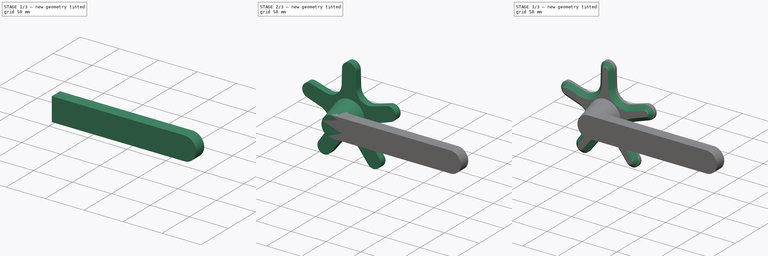
[diagram: build sequence overview — one tinted view per stage of 3, left to right]
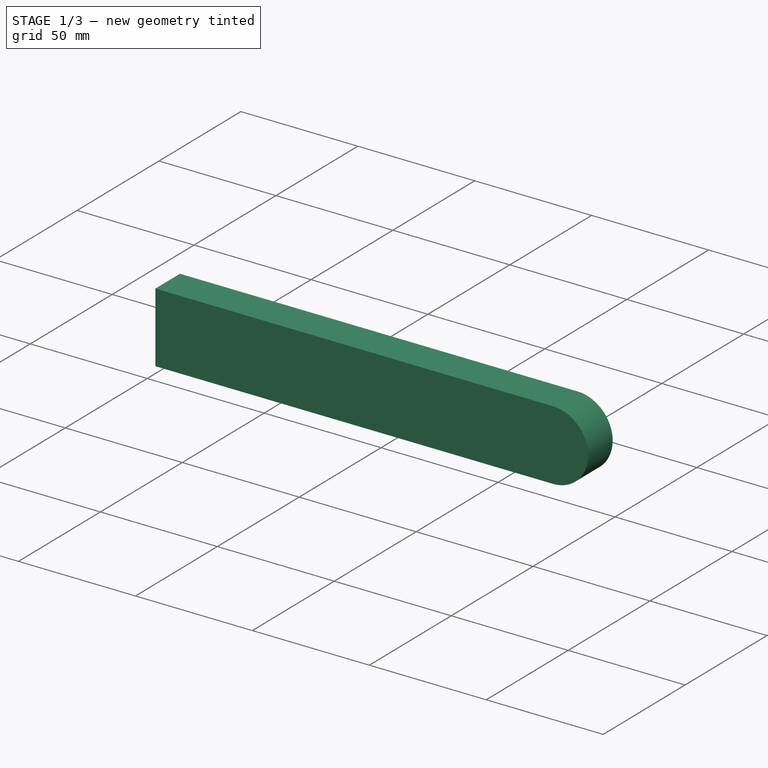
[diagram: stage 1 of 3 — iso view after this stage's code; geometry added in this stage tinted green]
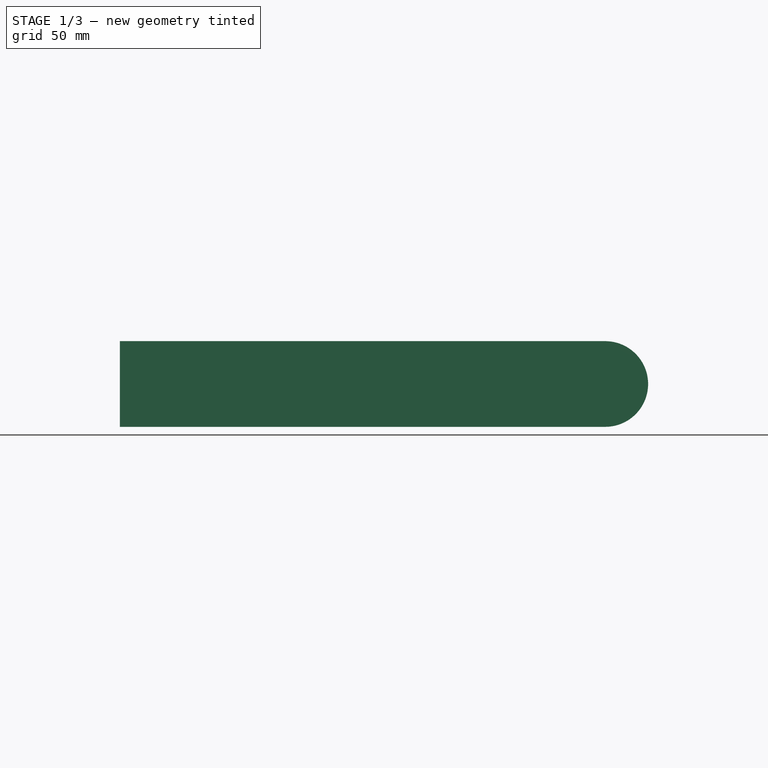
[diagram: stage 1 of 3 — front view after this stage's code; geometry added in this stage tinted green]
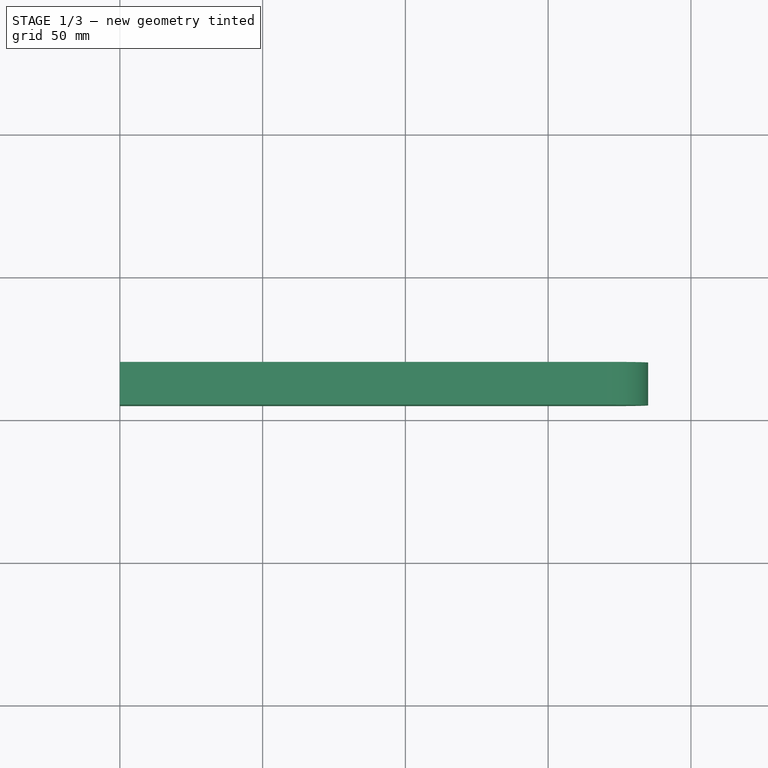
[diagram: stage 1 of 3 — top view after this stage's code; geometry added in this stage tinted green]
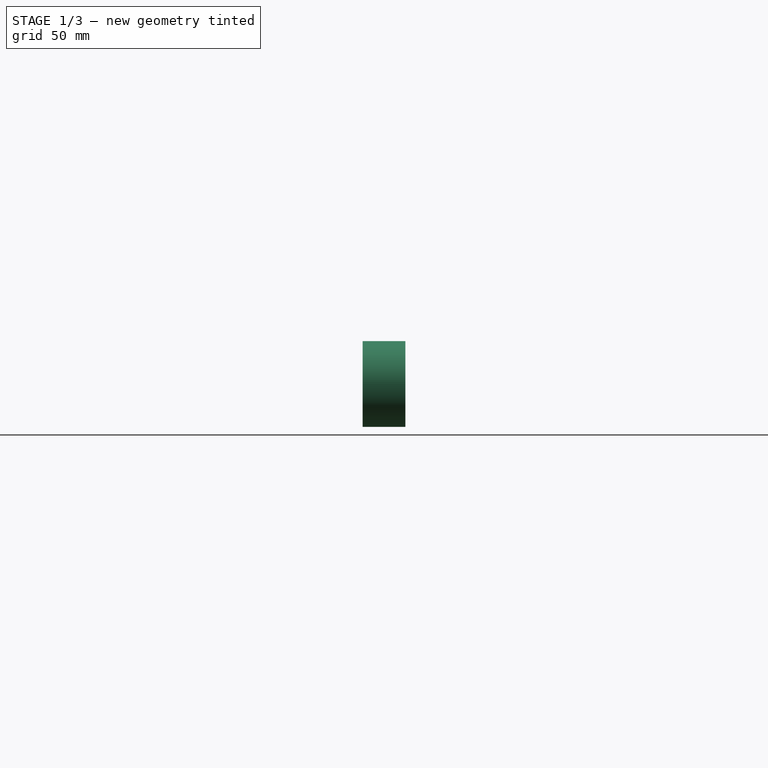
[diagram: stage 1 of 3 — right view after this stage's code; geometry added in this stage tinted green]
FCSTD DOCUMENT  (FreeCAD 0.19R16207 (Git))
Label: CRANK ARM
License: All rights reserved
LicenseURL: http://en.wikipedia.org/wiki/All_rights_reserved
objects: Sketcher::SketchObject×1, PartDesign::Pad×1, PartDesign::Body×1, Part::Chamfer×1, Part::Cone×1, Part::Box×1, Part::Cylinder×1, Part::MultiFuse×1, Part::Feature×1
note: 10 computed .brp shape members not serialized (recipe doc carries the construction recipe); baked Part::Feature solids carry a one-line shape summary decoded from their .brp

FEATURE [Part::Box] Box  label="Cube"
  AttacherType = Attacher::AttachEngine3D
  Height = 30
  Length = 170
  Placement = pos=(0,-45,-15) rot=(0,0,1;0rad)
  Width = 15
FEATURE [Part::Cylinder] Cylinder
  Angle = 360
  AttacherType = Attacher::AttachEngine3D
  Height = 15
  Placement = pos=(170,-45,1e-14) rot=(1,0,0;4.71239rad)
  Radius = 15
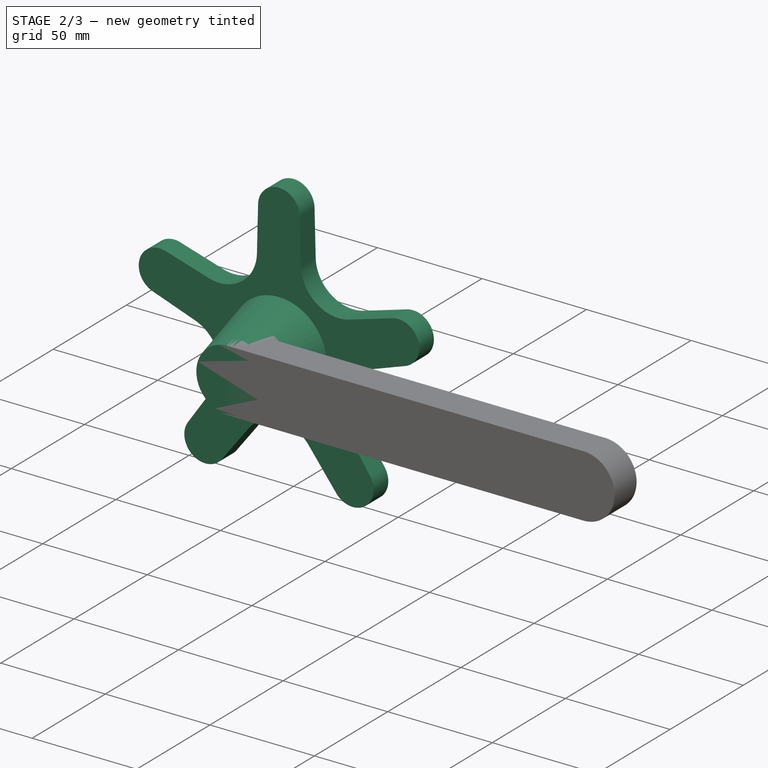
[diagram: stage 2 of 3 — iso view after this stage's code; geometry added in this stage tinted green]
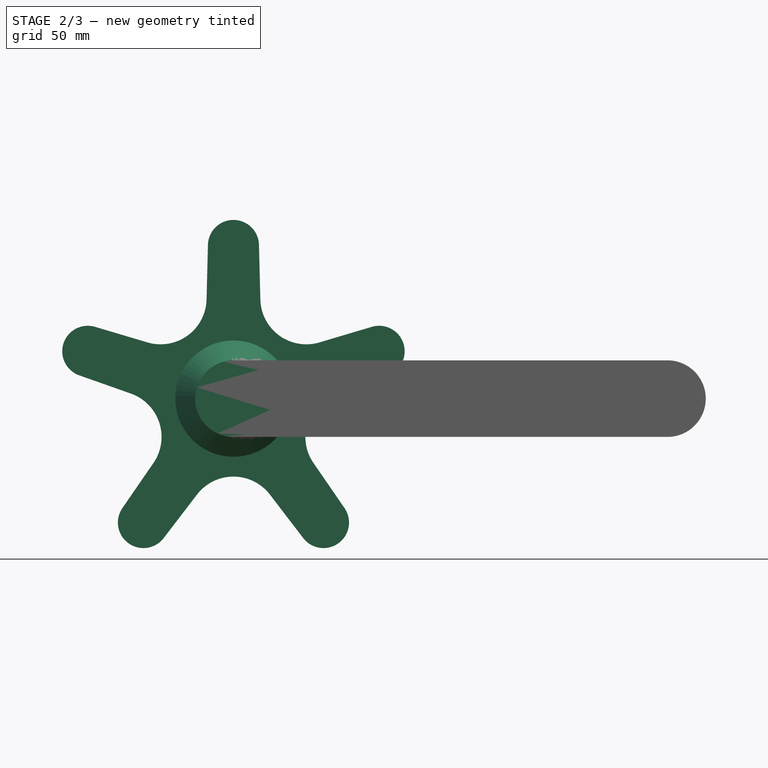
[diagram: stage 2 of 3 — front view after this stage's code; geometry added in this stage tinted green]
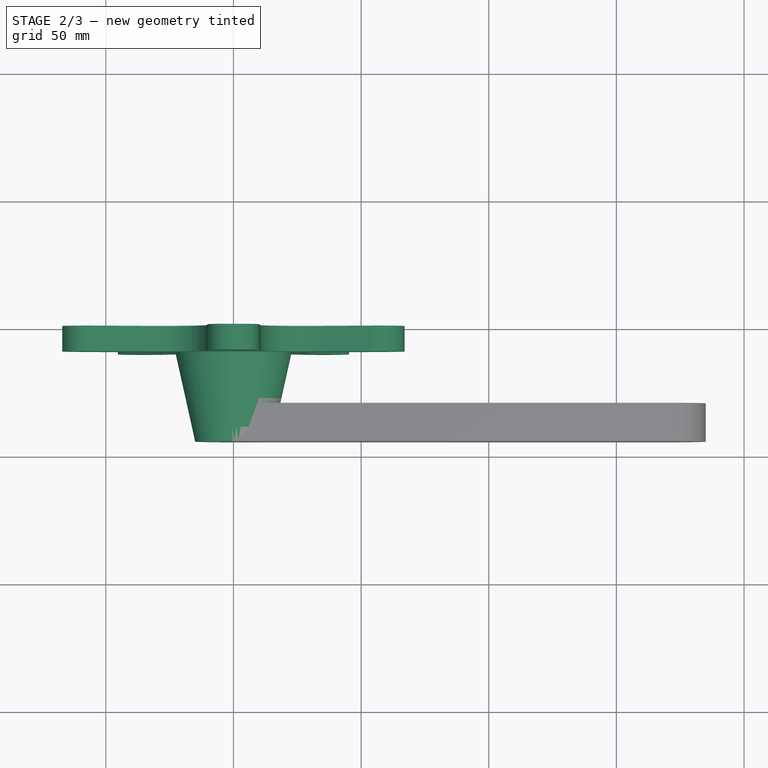
[diagram: stage 2 of 3 — top view after this stage's code; geometry added in this stage tinted green]
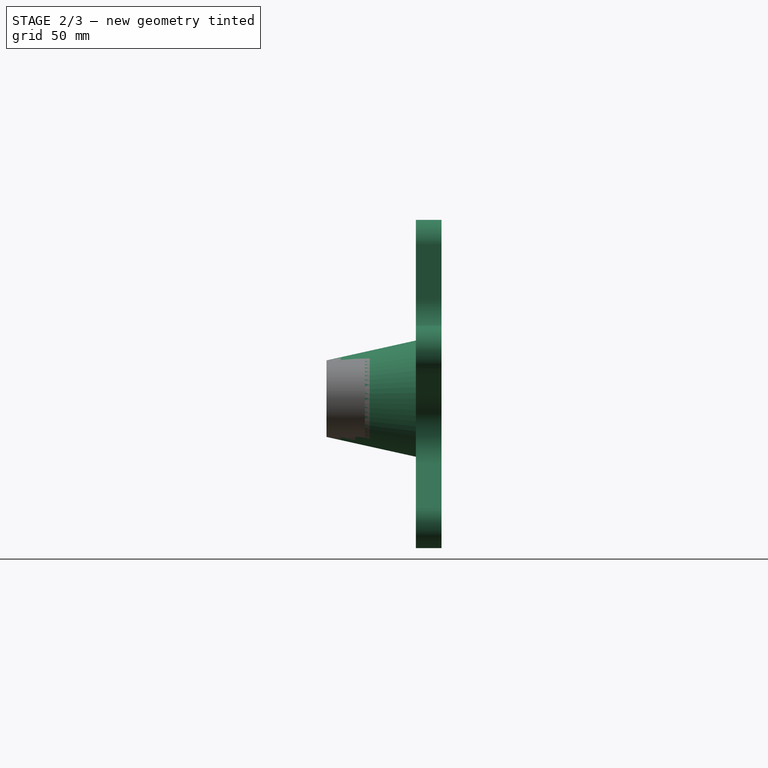
[diagram: stage 2 of 3 — right view after this stage's code; geometry added in this stage tinted green]
FEATURE [Sketcher::SketchObject] Sketch
  MapMode = 5
  Placement = pos=(0,0,0) rot=(1,0,0;1.5708rad)
  Support = -> [XZ_Plane]
  sketch-geometry (26):
    g0: LineSegment [constr] StartX=0 StartY=60 StartZ=0 EndX=-57.0634 EndY=18.541 EndZ=0
    g1: LineSegment [constr] StartX=-57.0634 StartY=18.541 StartZ=0 EndX=-35.2671 EndY=-48.541 EndZ=0
    g2: LineSegment [constr] StartX=-35.2671 StartY=-48.541 StartZ=0 EndX=35.2671 EndY=-48.541 EndZ=0
    g3: LineSegment [constr] StartX=35.2671 StartY=-48.541 StartZ=0 EndX=57.0634 EndY=18.541 EndZ=0
    g4: LineSegment [constr] StartX=57.0634 StartY=18.541 StartZ=0 EndX=0 EndY=60 EndZ=0
    g5: Circle [constr] CenterX=0 CenterY=0 CenterZ=0 NormalX=0 NormalY=0 NormalZ=1 AngleXU=0 Radius=60
    g6: LineSegment StartX=-9.99682 StartY=60.2521 StartZ=0 EndX=-10.5374 EndY=38.8167 EndZ=0
    g7: ArcOfCircle CenterX=-28.5317 CenterY=39.2705 CenterZ=0 NormalX=0 NormalY=0 NormalZ=1 AngleXU=0 Radius=18 StartAngle=4.42344 EndAngle=6.25797
    g8: LineSegment StartX=-33.6606 StartY=22.0167 StartZ=0 EndX=-54.214 EndY=28.1265 EndZ=0
    g9: ArcOfCircle CenterX=-57.0634 CenterY=18.541 CenterZ=0 NormalX=0 NormalY=0 NormalZ=1 AngleXU=0 Radius=10 StartAngle=1.28185 EndAngle=4.37302
    g10: LineSegment StartX=-60.3924 StartY=9.11139 StartZ=0 EndX=-40.1731 EndY=1.97334 EndZ=0
    g11: ArcOfCircle CenterX=-46.1653 CenterY=-15 CenterZ=0 NormalX=0 NormalY=0 NormalZ=1 AngleXU=0 Radius=18 StartAngle=5.68008 EndAngle=7.51461
    g12: LineSegment StartX=-31.3408 StartY=-25.2096 StartZ=0 EndX=-43.5029 EndY=-42.869 EndZ=0
    g13: ArcOfCircle CenterX=-35.2671 CenterY=-48.541 CenterZ=0 NormalX=0 NormalY=0 NormalZ=1 AngleXU=0 Radius=10 StartAngle=2.53849 EndAngle=5.62965
    g14: LineSegment StartX=-27.3277 StartY=-54.621 StartZ=0 EndX=-14.2909 EndY=-37.5971 EndZ=0
    g15: ArcOfCircle CenterX=-6.5e-15 CenterY=-48.541 CenterZ=0 NormalX=0 NormalY=0 NormalZ=1 AngleXU=0 Radius=18 StartAngle=0.653533 EndAngle=2.48806
    g16: LineSegment StartX=14.2909 StartY=-37.5971 StartZ=0 EndX=27.3277 EndY=-54.621 EndZ=0
    g17: ArcOfCircle CenterX=35.2671 CenterY=-48.541 CenterZ=0 NormalX=0 NormalY=0 NormalZ=1 AngleXU=0 Radius=10 StartAngle=3.79513 EndAngle=6.88629
    g18: LineSegment StartX=43.5029 StartY=-42.869 StartZ=0 EndX=31.3408 EndY=-25.2096 EndZ=0
    g19: ArcOfCircle CenterX=46.1653 CenterY=-15 CenterZ=0 NormalX=0 NormalY=0 NormalZ=1 AngleXU=0 Radius=18 StartAngle=1.91017 EndAngle=3.7447
    g20: LineSegment StartX=40.1731 StartY=1.97334 StartZ=0 EndX=60.3924 EndY=9.11139 EndZ=0
    g21: ArcOfCircle CenterX=57.0634 CenterY=18.541 CenterZ=0 NormalX=0 NormalY=0 NormalZ=1 AngleXU=0 Radius=10 StartAngle=5.05176 EndAngle=8.14293
    g22: LineSegment StartX=54.214 StartY=28.1265 StartZ=0 EndX=33.6606 EndY=22.0167 EndZ=0
    g23: ArcOfCircle CenterX=28.5317 CenterY=39.2705 CenterZ=0 NormalX=0 NormalY=0 NormalZ=1 AngleXU=0 Radius=18 StartAngle=3.16681 EndAngle=5.00133
    g24: LineSegment StartX=10.5374 StartY=38.8167 StartZ=0 EndX=9.99682 EndY=60.2521 EndZ=0
    g25: ArcOfCircle CenterX=0 CenterY=60 CenterZ=0 NormalX=0 NormalY=0 NormalZ=1 AngleXU=0 Radius=10 StartAngle=0.0252144 EndAngle=3.11638
  constraints (60):
    c: Coincident(g0,g1)
    c: Coincident(g1,g2)
    c: Coincident(g2,g3)
    c: Coincident(g3,g4)
    c: Coincident(g4,g0)
    c: Equal(g0, g1-g4) x4
    c: PointOnObject(g0,g5)
    c: PointOnObject(g1,g5)
    c: PointOnObject(g2,g5)
    c: PointOnObject(g3,g5)
    c: PointOnObject(g4,g5)
    c: Coincident(g5,g-1)
    c: PointOnObject(g4,g-2)
    c: Radius(g5) = 60
    c: Tangent(g6,g7) = 1.5708
    c: Tangent(g7,g8) = 1.5708
    c: Tangent(g8,g9) = -1.5708
    c: Tangent(g9,g10) = -1.5708
    c: Tangent(g10,g11) = 1.5708
    c: Tangent(g11,g12) = 1.5708
    c: Tangent(g12,g13) = -1.5708
    c: Tangent(g13,g14) = -1.5708
    c: Tangent(g14,g15) = 1.5708
    c: Tangent(g15,g16) = 1.5708
    c: Tangent(g16,g17) = -1.5708
    c: Tangent(g17,g18) = -1.5708
    c: Tangent(g18,g19) = 1.5708
    c: Tangent(g19,g20) = 1.5708
    c: Tangent(g20,g21) = -1.5708
    c: Tangent(g21,g22) = -1.5708
    c: Tangent(g22,g23) = 1.5708
    c: Tangent(g23,g24) = 1.5708
    c: Tangent(g24,g25) = -1.5708
    c: Coincident(g25,g6)
    c: Coincident(g25,g0)
    c: Coincident(g9,g0)
    c: Coincident(g1,g13)
    c: Coincident(g2,g17)
    c: Coincident(g3,g21)
    c: PointOnObject(g7,g0)
    c: PointOnObject(g11,g1)
    c: PointOnObject(g15,g2)
    c: PointOnObject(g19,g3)
    c: PointOnObject(g23,g4)
    c: Equal(g25,g9)
    c: Equal(g9,g13)
    c: Equal(g13,g17)
    c: Equal(g17,g21)
    c: Equal(g7,g11)
    c: Radius(g25) = 10
    c: Equal(g6,g8)
    c: Equal(g8,g10)
    c: Equal(g10,g12)
    c: Equal(g12,g14)
    c: Equal(g14,g16)
    c: Equal(g16,g18)
    c: Equal(g18,g20)
    c: Equal(g20,g22)
    c: Equal(g22,g24)
    c: Radius(g7) = 18
FEATURE [PartDesign::Pad] Pad
  Length = 10
  Length2 = 100
  Placement = pos=(0,0,0) rot=(1,0,0;1.5708rad)
  Profile = -> Sketch
  Type = 0
FEATURE [Part::Cone] Cone
  Angle = 360
  AttacherType = Attacher::AttachEngine3D
  Height = 45
  Placement = pos=(0,0,0) rot=(1,0,0;1.5708rad)
  Radius1 = 25
  Radius2 = 15
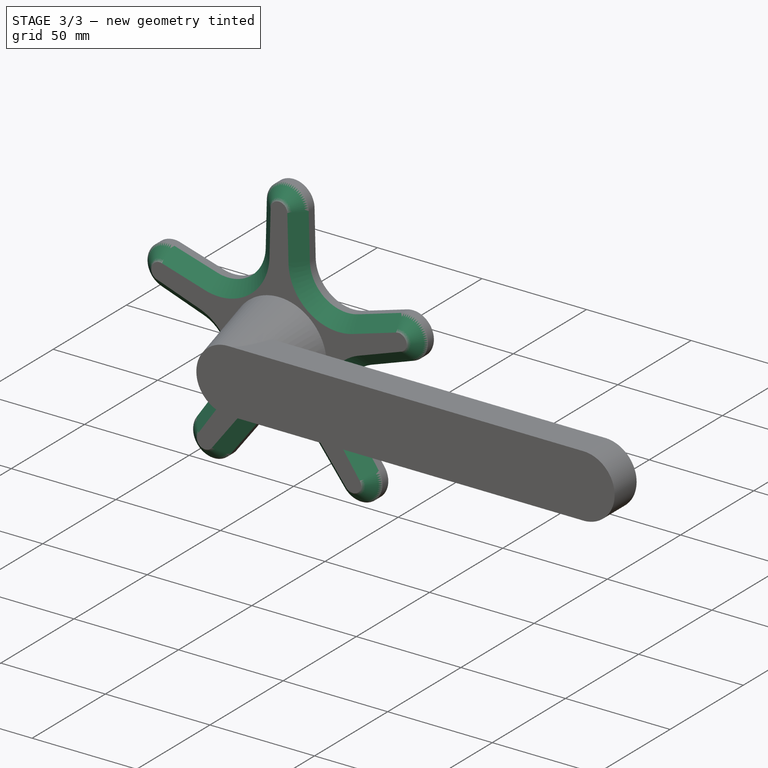
[diagram: stage 3 of 3 — iso view after this stage's code; geometry added in this stage tinted green]
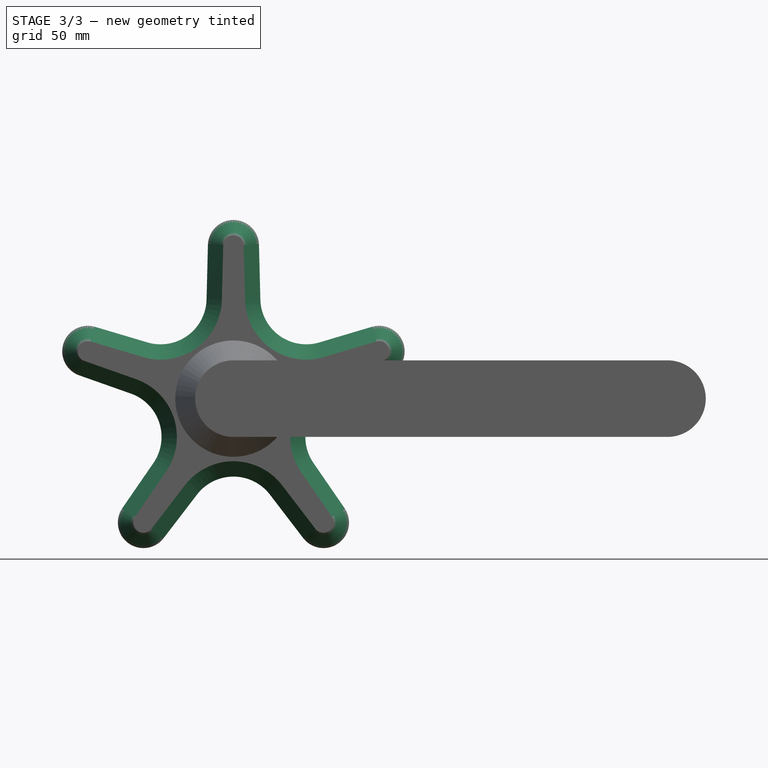
[diagram: stage 3 of 3 — front view after this stage's code; geometry added in this stage tinted green]
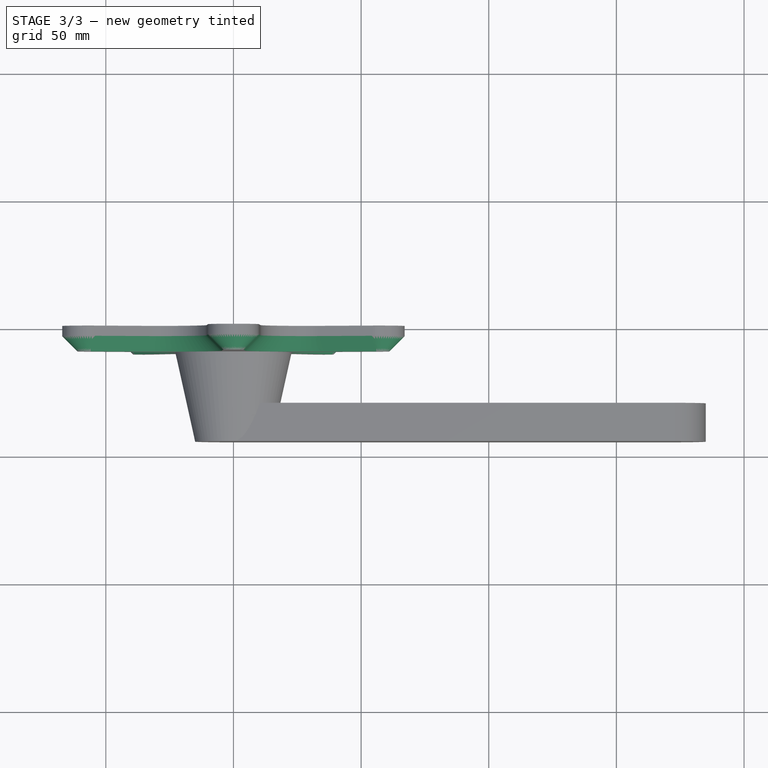
[diagram: stage 3 of 3 — top view after this stage's code; geometry added in this stage tinted green]
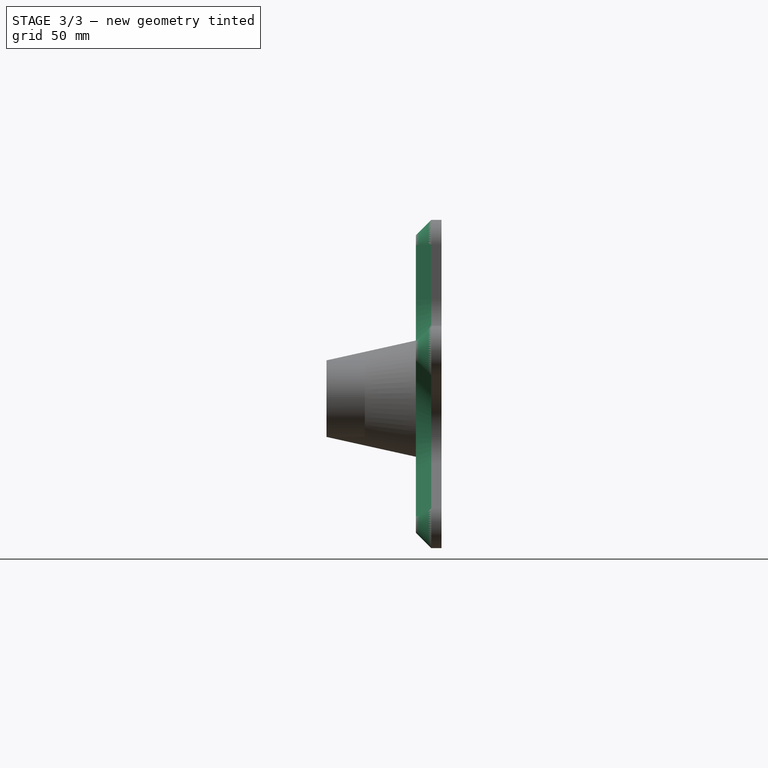
[diagram: stage 3 of 3 — right view after this stage's code; geometry added in this stage tinted green]
FEATURE [PartDesign::Body] Body
  Group = -> [Sketch,Pad]
  Origin = -> Origin
  Tip = -> Pad
FEATURE [Part::Chamfer] Chamfer
  Base = -> Pad
  Edges = 1 edges r=6: [Edge10]
FEATURE [Part::MultiFuse] Fusion
  Shapes = -> [Cylinder,Box,Cone,Chamfer]
FEATURE [Part::Feature] Fusion001
  shape: bbox 252.1 x 45 x 128.5 mm, 48 faces (baked)
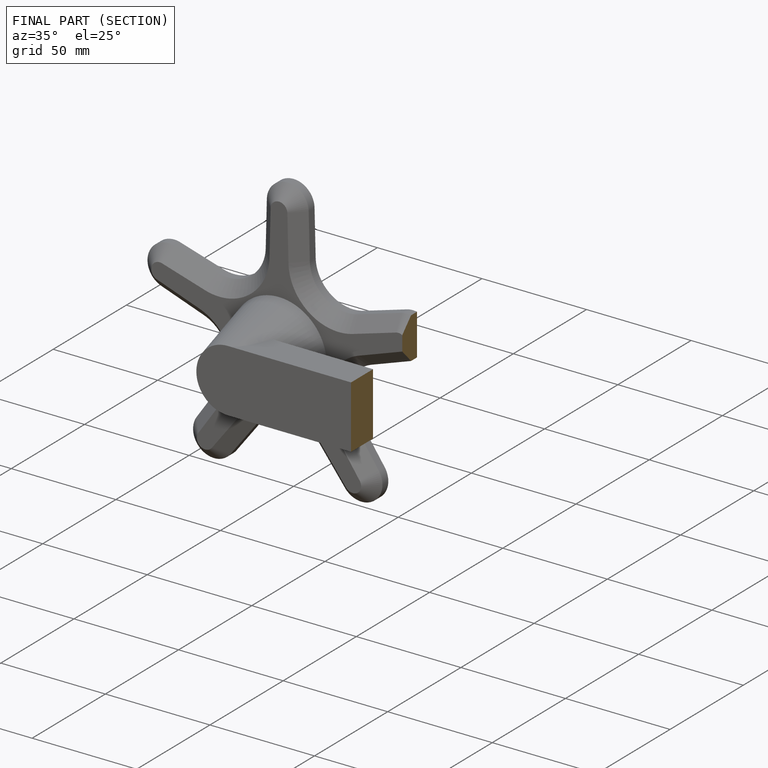
[diagram: finished part — half-section view (interior)]
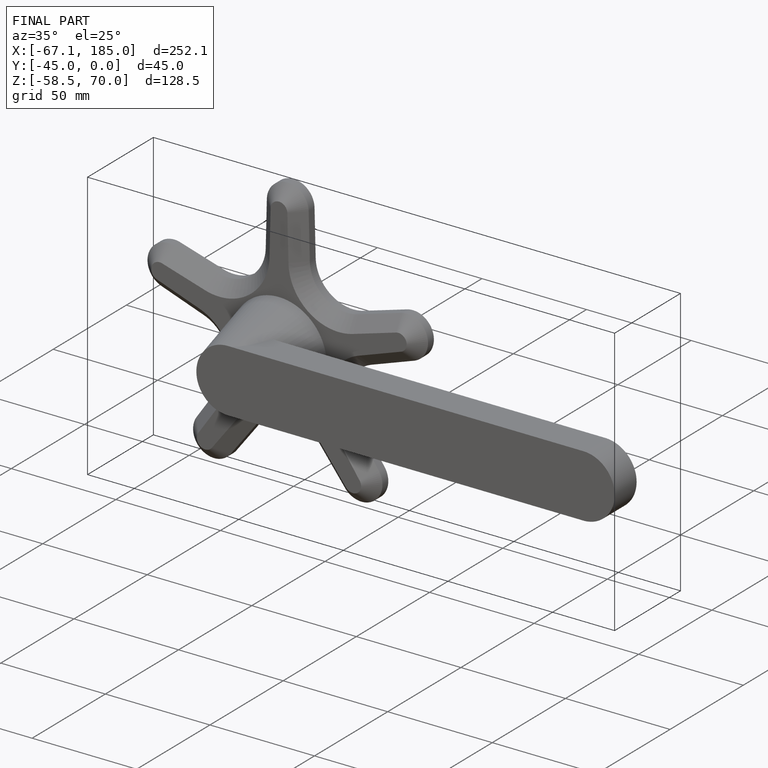
[diagram: finished part — iso view with bounding-box wireframe]
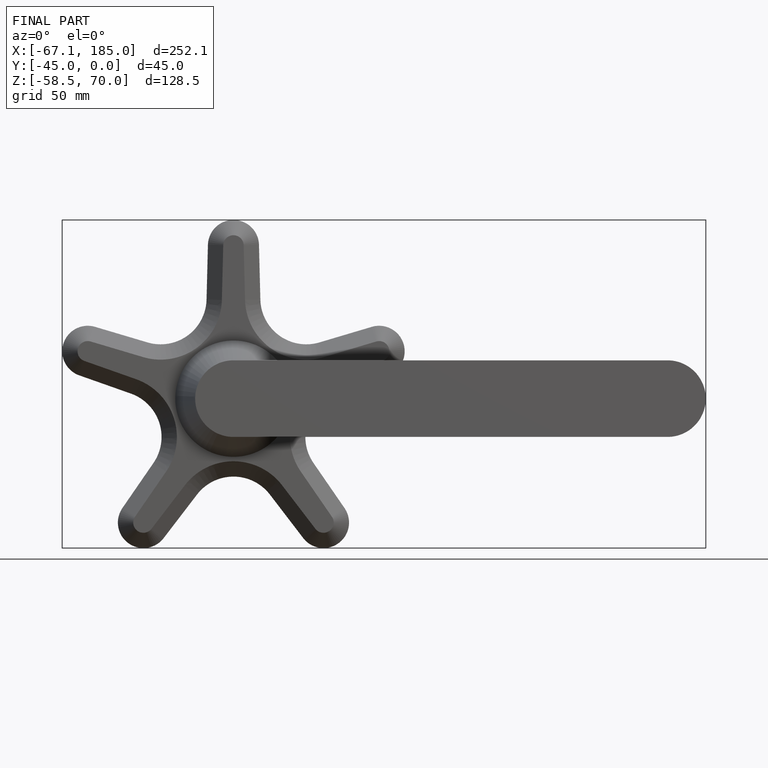
[diagram: finished part — front view with bounding-box wireframe]
